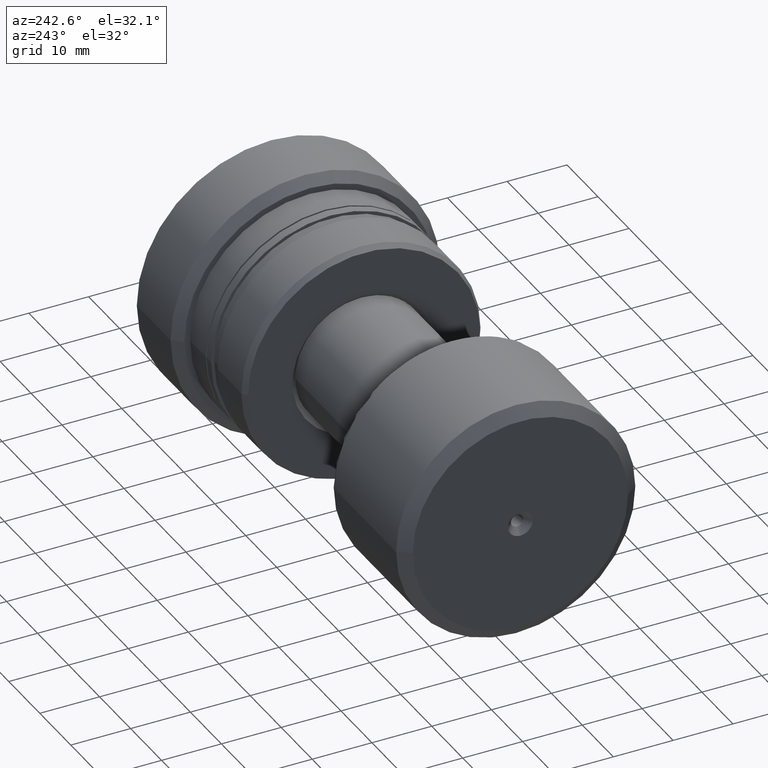
[diagram: clean part render]
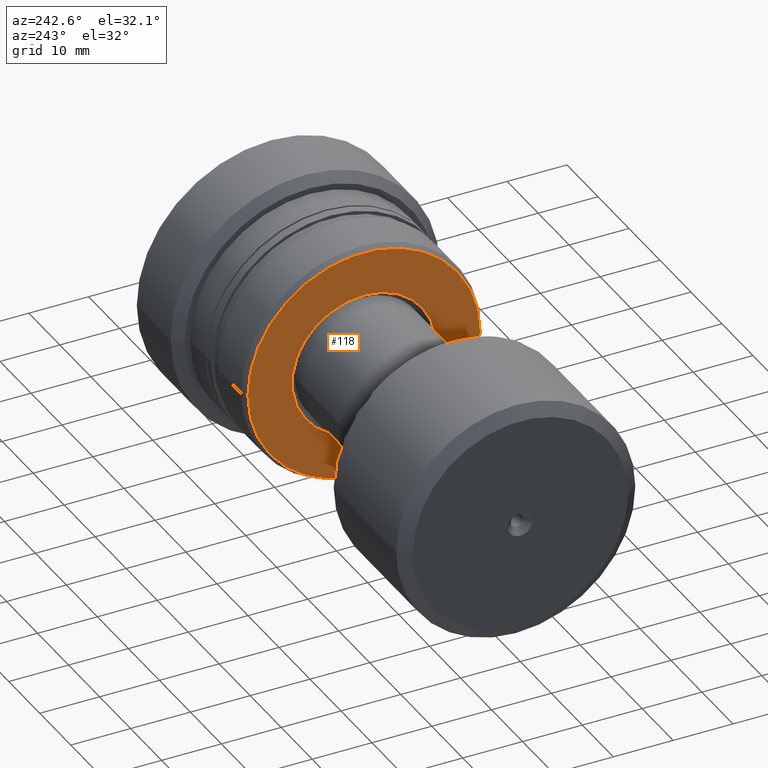
[diagram: same view with one face highlighted and labeled with its STEP entity id]
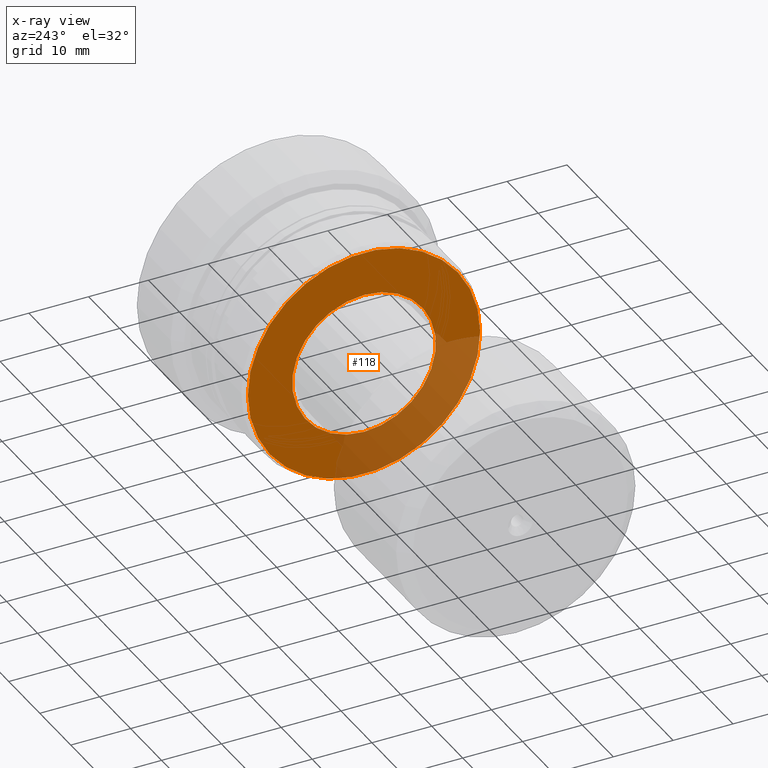
[diagram: x-ray of the same camera — body ghosted, the highlighted face saturated]
A machine part, auxiliary view. The second image highlights one B-rep face of the part: STEP entity #118.
The next image is the same camera in x-ray: the body ghosted, the highlighted face saturated — about 30% of this face is hidden behind the body in this view.
In plain terms, the highlighted planar face has unit normal (1, 0, 0).
Its self-contained STEP definition (entity closure, byte-faithful):
#31 = CIRCLE ( 'NONE', #1413, 19.42264973081046975 ) ;
#61 = DIRECTION ( 'NONE',  ( -2.891205793294666395E-15, 1.000000000000000000, 0.000000000000000000 ) ) ;
#118 = ADVANCED_FACE ( 'NONE', ( #2220, #994 ), #1312, .F. ) ;
#121 = VERTEX_POINT ( 'NONE', #1698 ) ;
#226 = EDGE_CURVE ( 'NONE', #1559, #394, #1030, .T. ) ;
#394 = VERTEX_POINT ( 'NONE', #841 ) ;
#508 = EDGE_CURVE ( 'NONE', #121, #1694, #642, .T. ) ;
#618 = EDGE_LOOP ( 'NONE', ( #1640, #2036 ) ) ;
#621 = EDGE_LOOP ( 'NONE', ( #660, #668 ) ) ;
#642 = CIRCLE ( 'NONE', #1642, 19.42264973081046975 ) ;
#660 = ORIENTED_EDGE ( 'NONE', *, *, #226, .T. ) ;
#668 = ORIENTED_EDGE ( 'NONE', *, *, #1188, .T. ) ;
#821 = CARTESIAN_POINT ( 'NONE',  ( -31.50000000000002842, 0.000000000000000000, 0.000000000000000000 ) ) ;
#841 = CARTESIAN_POINT ( 'NONE',  ( -31.50000000000002842, 1.469576158976825525E-15, -12.00000000000001421 ) ) ;
#970 = DIRECTION ( 'NONE',  ( 1.000000000000000000, 3.039592211588219332E-15, -0.000000000000000000 ) ) ;
#994 = FACE_OUTER_BOUND ( 'NONE', #618, .T. ) ;
#1030 = CIRCLE ( 'NONE', #1364, 12.00000000000004974 ) ;
#1188 = EDGE_CURVE ( 'NONE', #394, #1559, #2309, .T. ) ;
#1205 = CARTESIAN_POINT ( 'NONE',  ( -31.50000000000005684, -3.708233295962832451E-15, 0.000000000000000000 ) ) ;
#1227 = CARTESIAN_POINT ( 'NONE',  ( -31.50000000000005684, -3.708233295962832451E-15, 0.000000000000000000 ) ) ;
#1312 = PLANE ( 'NONE',  #2102 ) ;
#1363 = DIRECTION ( 'NONE',  ( -2.891205793294666395E-15, 1.000000000000000000, 0.000000000000000000 ) ) ;
#1364 = AXIS2_PLACEMENT_3D ( 'NONE', #821, #2004, #1363 ) ;
#1409 = DIRECTION ( 'NONE',  ( 1.000000000000000000, 3.039592211588219332E-15, -0.000000000000000000 ) ) ;
#1413 = AXIS2_PLACEMENT_3D ( 'NONE', #1227, #1409, #1968 ) ;
#1428 = DIRECTION ( 'NONE',  ( 1.000000000000000000, 3.039592211588219332E-15, -0.000000000000000000 ) ) ;
#1559 = VERTEX_POINT ( 'NONE', #2357 ) ;
#1640 = ORIENTED_EDGE ( 'NONE', *, *, #2083, .F. ) ;
#1642 = AXIS2_PLACEMENT_3D ( 'NONE', #1205, #1428, #1985 ) ;
#1694 = VERTEX_POINT ( 'NONE', #1938 ) ;
#1698 = CARTESIAN_POINT ( 'NONE',  ( -31.49999999999999289, -19.42264973081047330, 2.413941090337215294E-15 ) ) ;
#1749 = CARTESIAN_POINT ( 'NONE',  ( -31.50000000000002842, 0.000000000000000000, 0.000000000000000000 ) ) ;
#1938 = CARTESIAN_POINT ( 'NONE',  ( -31.50000000000011724, 19.42264973081046620, 0.000000000000000000 ) ) ;
#1968 = DIRECTION ( 'NONE',  ( -3.215320566487873166E-15, 1.000000000000000000, 0.000000000000000000 ) ) ;
#1985 = DIRECTION ( 'NONE',  ( -3.215320566487873166E-15, 1.000000000000000000, 0.000000000000000000 ) ) ;
#2004 = DIRECTION ( 'NONE',  ( 1.000000000000000000, 3.039592211588219332E-15, -0.000000000000000000 ) ) ;
#2036 = ORIENTED_EDGE ( 'NONE', *, *, #508, .F. ) ;
#2083 = EDGE_CURVE ( 'NONE', #1694, #121, #31, .T. ) ;
#2102 = AXIS2_PLACEMENT_3D ( 'NONE', #2246, #970, #2428 ) ;
#2218 = AXIS2_PLACEMENT_3D ( 'NONE', #1749, #2312, #61 ) ;
#2220 = FACE_BOUND ( 'NONE', #621, .T. ) ;
#2246 = CARTESIAN_POINT ( 'NONE',  ( -31.50000000000002842, -3.708233295962742521E-15, 0.000000000000000000 ) ) ;
#2309 = CIRCLE ( 'NONE', #2218, 12.00000000000004974 ) ;
#2312 = DIRECTION ( 'NONE',  ( 1.000000000000000000, 3.039592211588219332E-15, -0.000000000000000000 ) ) ;
#2357 = CARTESIAN_POINT ( 'NONE',  ( -31.50000000000002842, 0.000000000000000000, 12.00000000000001421 ) ) ;
#2428 = DIRECTION ( 'NONE',  ( -3.039592211588219332E-15, 1.000000000000000000, 0.000000000000000000 ) ) ;